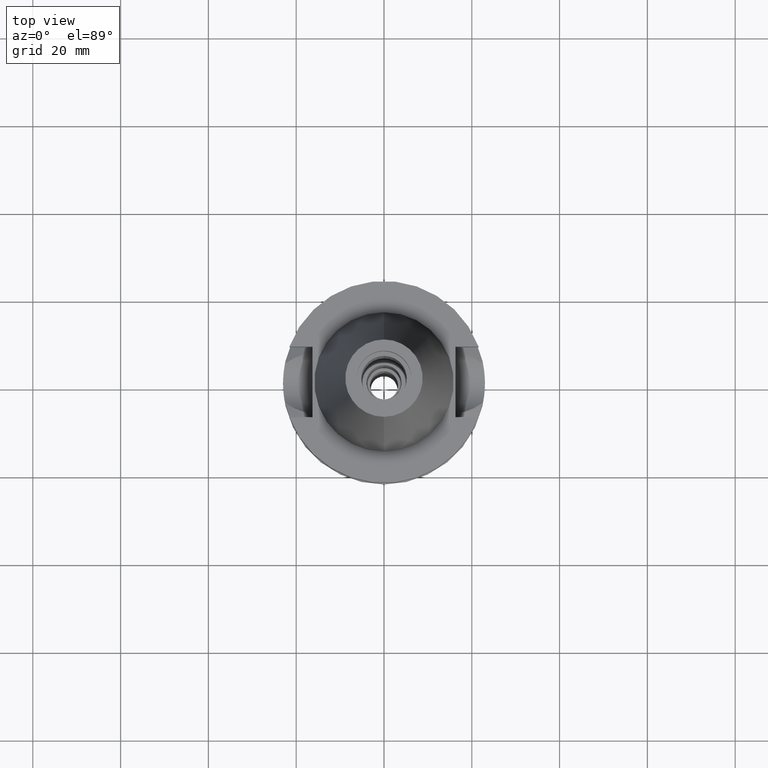
[diagram: clean part render]
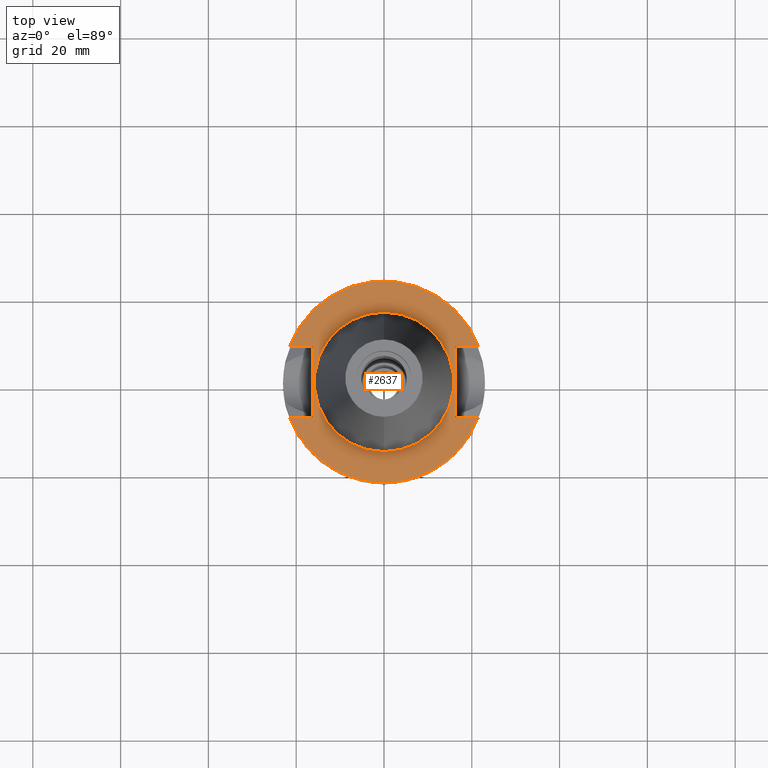
[diagram: same view with one face highlighted and labeled with its STEP entity id]
A machine part, top view. The second image highlights one B-rep face of the part: STEP entity #2637.
In plain terms, the highlighted planar face has unit normal (0, 0, -1).
Its self-contained STEP definition (entity closure, byte-faithful):
#24 = VECTOR ( 'NONE', #1192, 1000.000000000000000 ) ;
#85 = CARTESIAN_POINT ( 'NONE',  ( -16.29999999999999716, -8.050000000000000711, -1.000000000000000000 ) ) ;
#102 = DIRECTION ( 'NONE',  ( -1.000000000000000000, -9.313164748262000573E-14, 0.0000000000000000000 ) ) ;
#106 = AXIS2_PLACEMENT_3D ( 'NONE', #622, #143, #1285 ) ;
#130 = PLANE ( 'NONE',  #106 ) ;
#143 = DIRECTION ( 'NONE',  ( 0.0000000000000000000, 0.0000000000000000000, -1.000000000000000000 ) ) ;
#149 = ORIENTED_EDGE ( 'NONE', *, *, #2885, .F. ) ;
#203 = EDGE_CURVE ( 'NONE', #1247, #445, #2789, .T. ) ;
#222 = VERTEX_POINT ( 'NONE', #976 ) ;
#226 = CARTESIAN_POINT ( 'NONE',  ( -16.29999999999999716, 8.050000000000000711, -1.000000000000000000 ) ) ;
#314 = DIRECTION ( 'NONE',  ( 0.0000000000000000000, -1.000000000000000000, 0.0000000000000000000 ) ) ;
#335 = EDGE_CURVE ( 'NONE', #1247, #222, #805, .T. ) ;
#423 = VERTEX_POINT ( 'NONE', #2191 ) ;
#444 = DIRECTION ( 'NONE',  ( 0.0000000000000000000, 0.0000000000000000000, -1.000000000000000000 ) ) ;
#445 = VERTEX_POINT ( 'NONE', #1268 ) ;
#476 = VECTOR ( 'NONE', #2240, 1000.000000000000000 ) ;
#478 = ORIENTED_EDGE ( 'NONE', *, *, #1158, .F. ) ;
#517 = EDGE_LOOP ( 'NONE', ( #1762, #2519, #891, #807, #1746, #1093, #478, #1475 ) ) ;
#534 = LINE ( 'NONE', #1901, #24 ) ;
#622 = CARTESIAN_POINT ( 'NONE',  ( 0.0000000000000000000, 1.212400331155999925E-14, -1.000000000000000000 ) ) ;
#634 = CARTESIAN_POINT ( 'NONE',  ( 16.29999999999999716, 8.050000000000000711, -1.000000000000000000 ) ) ;
#742 = CARTESIAN_POINT ( 'NONE',  ( 16.29999999999999716, 8.050000000000000711, -1.000000000000000000 ) ) ;
#805 = LINE ( 'NONE', #634, #476 ) ;
#807 = ORIENTED_EDGE ( 'NONE', *, *, #203, .F. ) ;
#826 = ORIENTED_EDGE ( 'NONE', *, *, #2759, .F. ) ;
#891 = ORIENTED_EDGE ( 'NONE', *, *, #1362, .F. ) ;
#940 = VERTEX_POINT ( 'NONE', #1938 ) ;
#973 = VECTOR ( 'NONE', #986, 1000.000000000000000 ) ;
#976 = CARTESIAN_POINT ( 'NONE',  ( 21.54524309446999908, 8.050000000000000711, -0.9999999999999000799 ) ) ;
#986 = DIRECTION ( 'NONE',  ( 0.0000000000000000000, 1.000000000000000000, 0.0000000000000000000 ) ) ;
#992 = VECTOR ( 'NONE', #2004, 1000.000000000000000 ) ;
#1081 = LINE ( 'NONE', #1220, #973 ) ;
#1088 = CIRCLE ( 'NONE', #1521, 23.00000000000000000 ) ;
#1093 = ORIENTED_EDGE ( 'NONE', *, *, #1156, .F. ) ;
#1156 = EDGE_CURVE ( 'NONE', #1526, #222, #1088, .T. ) ;
#1158 = EDGE_CURVE ( 'NONE', #1271, #1526, #1759, .T. ) ;
#1192 = DIRECTION ( 'NONE',  ( 1.000000000000000000, -9.347030801892000173E-14, 0.0000000000000000000 ) ) ;
#1220 = CARTESIAN_POINT ( 'NONE',  ( -16.29999999999999716, -8.050000000000000711, -1.000000000000000000 ) ) ;
#1240 = LINE ( 'NONE', #2155, #2366 ) ;
#1247 = VERTEX_POINT ( 'NONE', #742 ) ;
#1268 = CARTESIAN_POINT ( 'NONE',  ( 16.29999999999999716, -8.050000000000000711, -1.000000000000000000 ) ) ;
#1271 = VERTEX_POINT ( 'NONE', #1659 ) ;
#1285 = DIRECTION ( 'NONE',  ( 0.0000000000000000000, -1.000000000000000000, 0.0000000000000000000 ) ) ;
#1316 = AXIS2_PLACEMENT_3D ( 'NONE', #2245, #1865, #1820 ) ;
#1353 = DIRECTION ( 'NONE',  ( 0.0000000000000000000, 1.000000000000000000, 0.0000000000000000000 ) ) ;
#1362 = EDGE_CURVE ( 'NONE', #445, #940, #534, .T. ) ;
#1475 = ORIENTED_EDGE ( 'NONE', *, *, #1996, .F. ) ;
#1490 = AXIS2_PLACEMENT_3D ( 'NONE', #2243, #1797, #2056 ) ;
#1521 = AXIS2_PLACEMENT_3D ( 'NONE', #1553, #444, #1353 ) ;
#1526 = VERTEX_POINT ( 'NONE', #2115 ) ;
#1553 = CARTESIAN_POINT ( 'NONE',  ( 0.0000000000000000000, 1.908856965831000054E-14, -0.9999999999999000799 ) ) ;
#1602 = VERTEX_POINT ( 'NONE', #1895 ) ;
#1632 = VERTEX_POINT ( 'NONE', #85 ) ;
#1659 = CARTESIAN_POINT ( 'NONE',  ( -16.29999999999999716, 8.050000000000000711, -1.000000000000000000 ) ) ;
#1746 = ORIENTED_EDGE ( 'NONE', *, *, #335, .T. ) ;
#1759 = LINE ( 'NONE', #226, #992 ) ;
#1762 = ORIENTED_EDGE ( 'NONE', *, *, #2531, .T. ) ;
#1797 = DIRECTION ( 'NONE',  ( 0.0000000000000000000, 0.0000000000000000000, 1.000000000000000000 ) ) ;
#1800 = EDGE_CURVE ( 'NONE', #940, #2042, #2603, .T. ) ;
#1820 = DIRECTION ( 'NONE',  ( 0.0000000000000000000, -1.000000000000000000, 0.0000000000000000000 ) ) ;
#1865 = DIRECTION ( 'NONE',  ( 0.0000000000000000000, 0.0000000000000000000, -1.000000000000000000 ) ) ;
#1895 = CARTESIAN_POINT ( 'NONE',  ( 0.0000000000000000000, -15.87500000000000000, -0.9999999999999000799 ) ) ;
#1899 = CARTESIAN_POINT ( 'NONE',  ( -21.54524309446999908, -8.050000000000000711, -1.000000000000000000 ) ) ;
#1901 = CARTESIAN_POINT ( 'NONE',  ( 16.29999999999999716, -8.050000000000000711, -1.000000000000000000 ) ) ;
#1938 = CARTESIAN_POINT ( 'NONE',  ( 21.54524309446999908, -8.050000000000000711, -1.000000000000000000 ) ) ;
#1970 = AXIS2_PLACEMENT_3D ( 'NONE', #2497, #2275, #2069 ) ;
#1973 = FACE_BOUND ( 'NONE', #2896, .T. ) ;
#1996 = EDGE_CURVE ( 'NONE', #1632, #1271, #1081, .T. ) ;
#2004 = DIRECTION ( 'NONE',  ( -1.000000000000000000, 9.347030801892000173E-14, 0.0000000000000000000 ) ) ;
#2042 = VERTEX_POINT ( 'NONE', #1899 ) ;
#2056 = DIRECTION ( 'NONE',  ( 0.0000000000000000000, 1.000000000000000000, 0.0000000000000000000 ) ) ;
#2069 = DIRECTION ( 'NONE',  ( 0.0000000000000000000, -1.000000000000000000, 0.0000000000000000000 ) ) ;
#2115 = CARTESIAN_POINT ( 'NONE',  ( -21.54524309446999908, 8.050000000000000711, -1.000000000000000000 ) ) ;
#2117 = CIRCLE ( 'NONE', #1970, 15.87500000000000000 ) ;
#2155 = CARTESIAN_POINT ( 'NONE',  ( -16.29999999999999716, -8.050000000000000711, -1.000000000000000000 ) ) ;
#2191 = CARTESIAN_POINT ( 'NONE',  ( 0.0000000000000000000, 15.87500000000000000, -0.9999999999999000799 ) ) ;
#2240 = DIRECTION ( 'NONE',  ( 1.000000000000000000, 9.380896855521999773E-14, 0.0000000000000000000 ) ) ;
#2243 = CARTESIAN_POINT ( 'NONE',  ( 0.0000000000000000000, 1.908856965831000054E-14, -0.9999999999999000799 ) ) ;
#2245 = CARTESIAN_POINT ( 'NONE',  ( 0.0000000000000000000, 1.908856965831000054E-14, -0.9999999999999000799 ) ) ;
#2260 = CIRCLE ( 'NONE', #1490, 15.87500000000000000 ) ;
#2275 = DIRECTION ( 'NONE',  ( 0.0000000000000000000, 0.0000000000000000000, 1.000000000000000000 ) ) ;
#2359 = CARTESIAN_POINT ( 'NONE',  ( 16.29999999999999716, 8.050000000000000711, -1.000000000000000000 ) ) ;
#2366 = VECTOR ( 'NONE', #102, 1000.000000000000000 ) ;
#2497 = CARTESIAN_POINT ( 'NONE',  ( 0.0000000000000000000, 1.908856965831000054E-14, -0.9999999999999000799 ) ) ;
#2516 = VECTOR ( 'NONE', #314, 1000.000000000000000 ) ;
#2519 = ORIENTED_EDGE ( 'NONE', *, *, #1800, .F. ) ;
#2531 = EDGE_CURVE ( 'NONE', #1632, #2042, #1240, .T. ) ;
#2603 = CIRCLE ( 'NONE', #1316, 23.00000000000000000 ) ;
#2637 = ADVANCED_FACE ( 'NONE', ( #2663, #1973 ), #130, .F. ) ;
#2663 = FACE_OUTER_BOUND ( 'NONE', #517, .T. ) ;
#2759 = EDGE_CURVE ( 'NONE', #423, #1602, #2260, .T. ) ;
#2789 = LINE ( 'NONE', #2359, #2516 ) ;
#2885 = EDGE_CURVE ( 'NONE', #1602, #423, #2117, .T. ) ;
#2896 = EDGE_LOOP ( 'NONE', ( #826, #149 ) ) ;